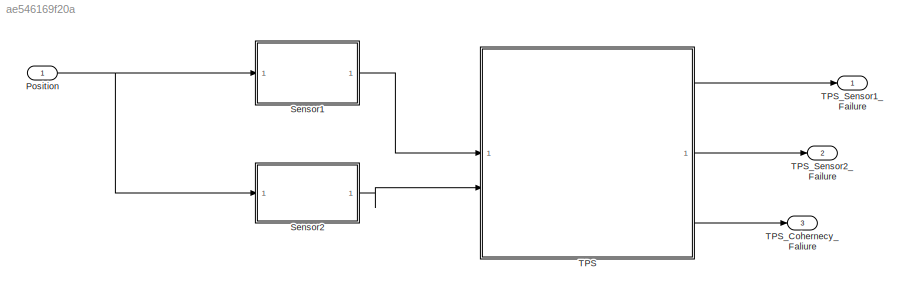
MODEL slx_ae546169f20a
KIND model
CONFIG AbsTol = auto
CONFIG EnableMultiTasking = off
CONFIG FixedStep = 0.1
CONFIG MaxStep = auto
CONFIG MinStep = auto
CONFIG RelTol = 1e-3
CONFIG SampleTimeConstraint = Unconstrained
CONFIG SolverName = FixedStepDiscrete
CONFIG StartTime = 0.0
CONFIG StopTime = 10.0
BLOCK [Inport] Position 
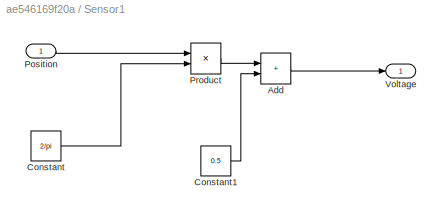
BLOCK [SubSystem] Sensor1
BLOCK [Sum] Sensor1/Add
  AccumDataTypeStr = single
  IconShape = rectangular
BLOCK [Constant] Sensor1/Constant
  Value = 2/pi
BLOCK [Constant] Sensor1/Constant1
  OutDataTypeStr = single
  Value = 0.5
BLOCK [Inport] Sensor1/Position
BLOCK [Product] Sensor1/Product
  OutDataTypeStr = single
BLOCK [Outport] Sensor1/Voltage
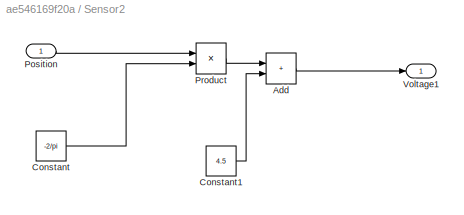
BLOCK [SubSystem] Sensor2
BLOCK [Sum] Sensor2/Add
  IconShape = rectangular
BLOCK [Constant] Sensor2/Constant
  OutDataTypeStr = single
  Value = -2/pi
BLOCK [Constant] Sensor2/Constant1
  OutDataTypeStr = single
  Value = 4.5
BLOCK [Inport] Sensor2/Position
BLOCK [Product] Sensor2/Product
BLOCK [Outport] Sensor2/Voltage1
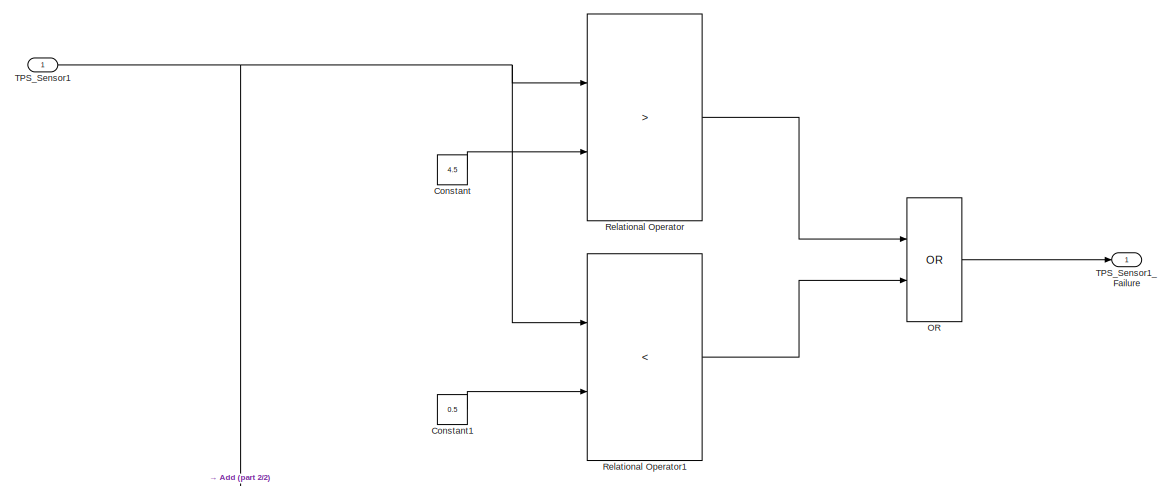
[diagram: TPS - part 1/2, full width, top band]
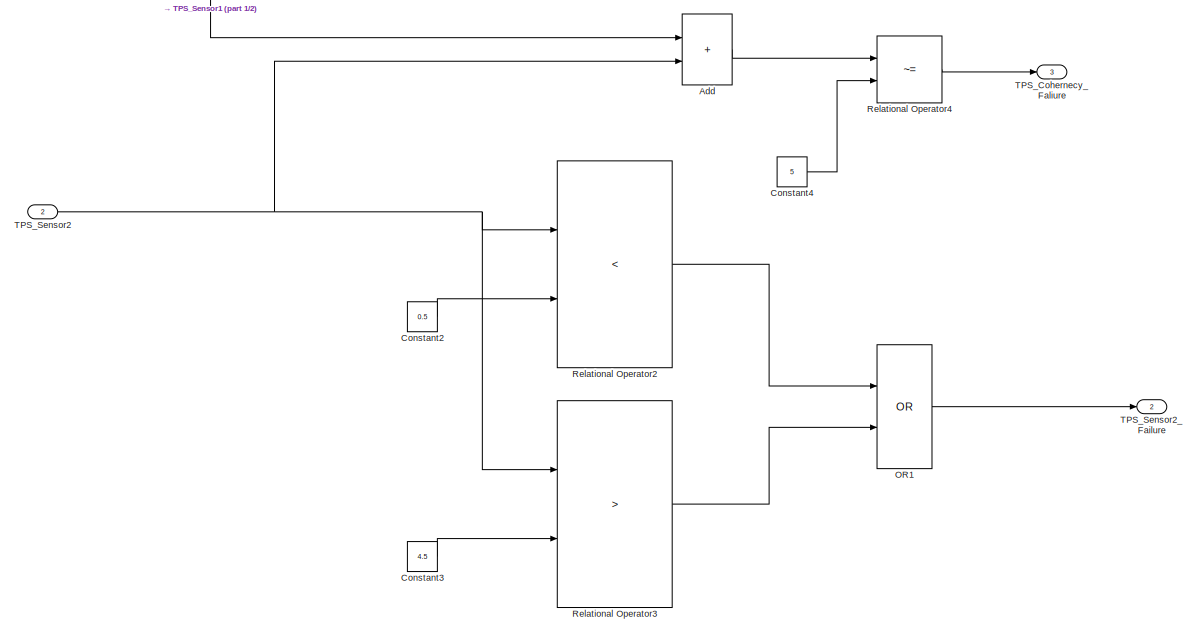
[diagram: TPS - part 2/2, full width, bottom band]
BLOCK [SubSystem] TPS
BLOCK [Sum] TPS/Add
  IconShape = rectangular
BLOCK [Constant] TPS/Constant
  Value = 4.5
BLOCK [Constant] TPS/Constant1
  Value = 0.5
BLOCK [Constant] TPS/Constant2
  Value = 0.5
BLOCK [Constant] TPS/Constant3
  Value = 4.5
BLOCK [Constant] TPS/Constant4
  Value = 5
BLOCK [Logic] TPS/OR
  AllPortsSameDT = off
  Operator = OR
  OutDataTypeStr = boolean
BLOCK [Logic] TPS/OR1
  AllPortsSameDT = off
  Operator = OR
  OutDataTypeStr = boolean
BLOCK [RelationalOperator] TPS/Relational Operator
  InputSameDT = off
  Operator = >
  OutDataTypeStr = boolean
  RndMeth = Simplest
BLOCK [RelationalOperator] TPS/Relational Operator1
  InputSameDT = off
  Operator = <
  OutDataTypeStr = boolean
  RndMeth = Simplest
BLOCK [RelationalOperator] TPS/Relational Operator2
  InputSameDT = off
  Operator = <
  OutDataTypeStr = boolean
  RndMeth = Simplest
BLOCK [RelationalOperator] TPS/Relational Operator3
  InputSameDT = off
  Operator = >
  OutDataTypeStr = boolean
  RndMeth = Simplest
BLOCK [RelationalOperator] TPS/Relational Operator4
  InputSameDT = off
  Operator = ~=
  OutDataTypeStr = boolean
  RndMeth = Simplest
BLOCK [Outport] TPS/TPS_Cohernecy_Faliure
  OutDataTypeStr = boolean
  Port = 3
BLOCK [Inport] TPS/TPS_Sensor1
  OutDataTypeStr = single
BLOCK [Outport] TPS/TPS_Sensor1_Failure
  OutDataTypeStr = boolean
BLOCK [Inport] TPS/TPS_Sensor2
  OutDataTypeStr = single
  Port = 2
BLOCK [Outport] TPS/TPS_Sensor2_Failure
  OutDataTypeStr = boolean
  Port = 2
BLOCK [Outport] TPS_Cohernecy_Faliure
  Port = 3
BLOCK [Outport] TPS_Sensor1_Failure
BLOCK [Outport] TPS_Sensor2_Failure
  Port = 2
NET Position :1 -> Sensor1:1, Sensor2:1
LINE Sensor1/Add:1 -> Sensor1/Voltage:1
LINE Sensor1/Constant1:1 -> Sensor1/Add:2
LINE Sensor1/Constant:1 -> Sensor1/Product:2
LINE Sensor1/Position:1 -> Sensor1/Product:1
LINE Sensor1/Product:1 -> Sensor1/Add:1
LINE Sensor1:1 -> TPS:1
LINE Sensor2/Add:1 -> Sensor2/Voltage1:1
LINE Sensor2/Constant1:1 -> Sensor2/Add:2
LINE Sensor2/Constant:1 -> Sensor2/Product:2
LINE Sensor2/Position:1 -> Sensor2/Product:1
LINE Sensor2/Product:1 -> Sensor2/Add:1
LINE Sensor2:1 -> TPS:2
LINE TPS/Add:1 -> TPS/Relational Operator4:1
LINE TPS/Constant1:1 -> TPS/Relational Operator1:2
LINE TPS/Constant2:1 -> TPS/Relational Operator2:2
LINE TPS/Constant3:1 -> TPS/Relational Operator3:2
LINE TPS/Constant4:1 -> TPS/Relational Operator4:2
LINE TPS/Constant:1 -> TPS/Relational Operator:2
LINE TPS/OR1:1 -> TPS/TPS_Sensor2_Failure:1
LINE TPS/OR:1 -> TPS/TPS_Sensor1_Failure:1
LINE TPS/Relational Operator1:1 -> TPS/OR:2
LINE TPS/Relational Operator2:1 -> TPS/OR1:1
LINE TPS/Relational Operator3:1 -> TPS/OR1:2
LINE TPS/Relational Operator4:1 -> TPS/TPS_Cohernecy_Faliure:1
LINE TPS/Relational Operator:1 -> TPS/OR:1
NET TPS/TPS_Sensor1:1 -> TPS/Add:1, TPS/Relational Operator1:1, TPS/Relational Operator:1
NET TPS/TPS_Sensor2:1 -> TPS/Add:2, TPS/Relational Operator2:1, TPS/Relational Operator3:1
LINE TPS:1 -> TPS_Sensor1_Failure:1
LINE TPS:2 -> TPS_Sensor2_Failure:1
LINE TPS:3 -> TPS_Cohernecy_Faliure:1
note: NET lines group one-source signal fan-out (src -> all destinations, sorted); 1:1 wires keep LINE
